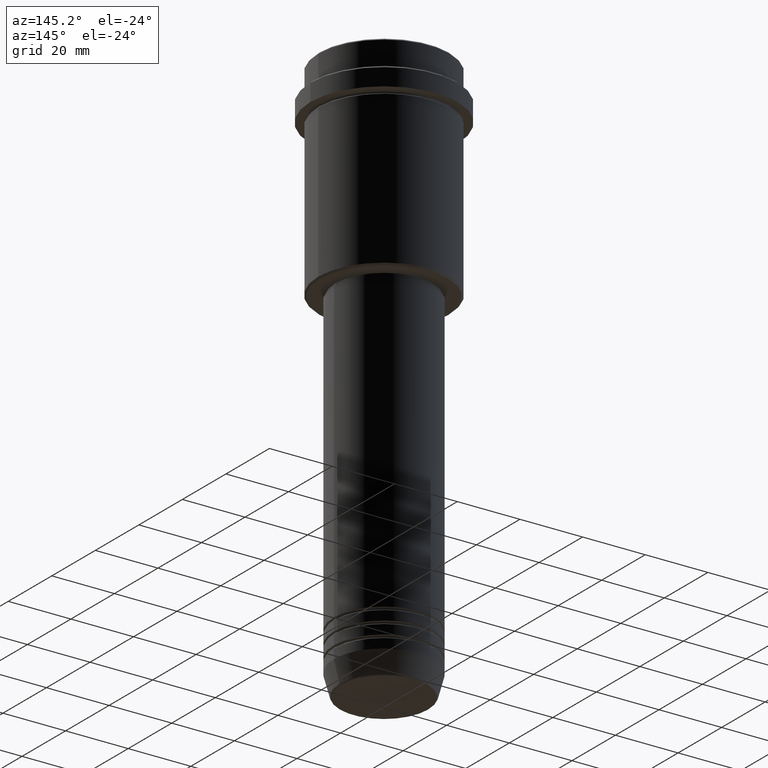
[diagram: clean part render]
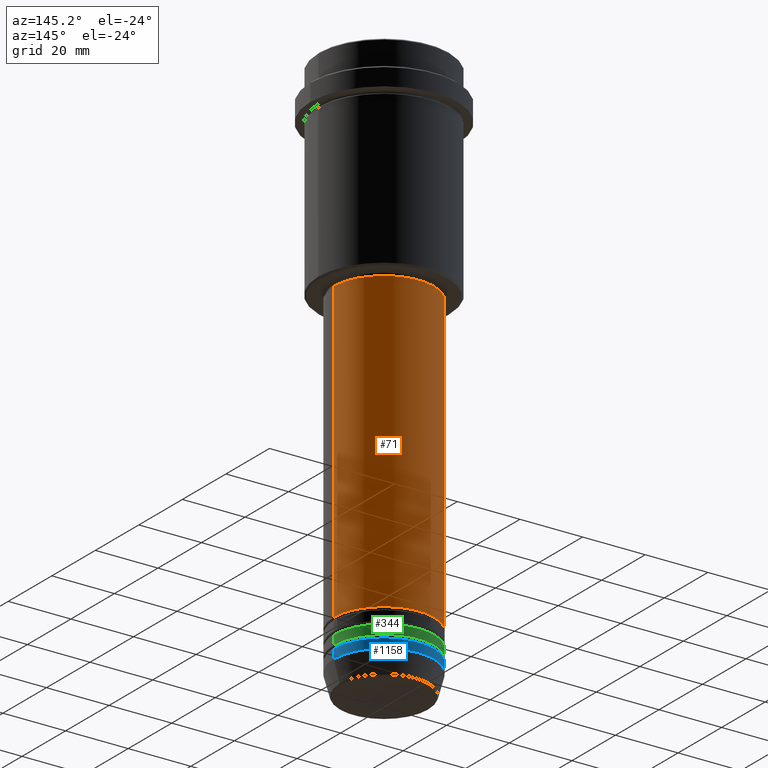
[diagram: same view with three faces highlighted in distinct colors, each labeled with its STEP entity id]
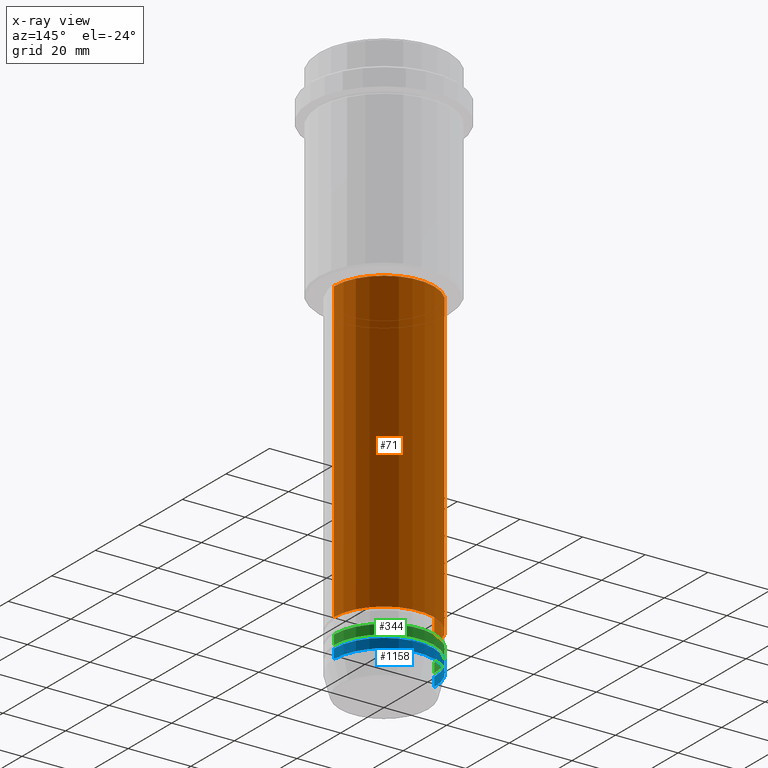
[diagram: x-ray of the same camera — body ghosted, the three highlighted faces saturated]
A machine part, auxiliary view with three faces highlighted in distinct colors.
The next image is the same camera in x-ray (body ghosted, the three faces saturated) — at least one of them is partly hidden behind the body in this view.
Their STEP definitions:

[orange] entity #71 — the highlighted cylindrical surface (partial cylindrical patch) has radius 16 mm, axis along (-0, -0, 1).
#11 = ORIENTED_EDGE ( 'NONE', *, *, #1259, .T. ) ;
#33 = LINE ( 'NONE', #1215, #437 ) ;
#56 = VERTEX_POINT ( 'NONE', #1403 ) ;
#63 = CIRCLE ( 'NONE', #760, 16.00000000000000000 ) ;
#71 = ADVANCED_FACE ( 'NONE', ( #847 ), #1279, .T. ) ;
#159 = CARTESIAN_POINT ( 'NONE',  ( 0.000000000000000000, 0.000000000000000000, -160.9999999999999147 ) ) ;
#241 = VERTEX_POINT ( 'NONE', #1318 ) ;
#319 = CARTESIAN_POINT ( 'NONE',  ( 16.00000000000000000, 0.000000000000000000, -160.9999999999999147 ) ) ;
#331 = DIRECTION ( 'NONE',  ( -0.000000000000000000, -0.000000000000000000, 1.000000000000000000 ) ) ;
#391 = CARTESIAN_POINT ( 'NONE',  ( -16.00000000000000000, 1.959434878635765131E-15, 0.000000000000000000 ) ) ;
#427 = DIRECTION ( 'NONE',  ( 1.000000000000000000, 0.000000000000000000, 0.000000000000000000 ) ) ;
#437 = VECTOR ( 'NONE', #545, 1000.000000000000000 ) ;
#446 = EDGE_CURVE ( 'NONE', #514, #56, #63, .T. ) ;
#464 = ORIENTED_EDGE ( 'NONE', *, *, #1125, .F. ) ;
#514 = VERTEX_POINT ( 'NONE', #319 ) ;
#545 = DIRECTION ( 'NONE',  ( -0.000000000000000000, -0.000000000000000000, 1.000000000000000000 ) ) ;
#657 = DIRECTION ( 'NONE',  ( -0.000000000000000000, -0.000000000000000000, 1.000000000000000000 ) ) ;
#728 = ORIENTED_EDGE ( 'NONE', *, *, #446, .T. ) ;
#760 = AXIS2_PLACEMENT_3D ( 'NONE', #159, #657, #427 ) ;
#847 = FACE_OUTER_BOUND ( 'NONE', #887, .T. ) ;
#887 = EDGE_LOOP ( 'NONE', ( #728, #11, #1152, #464 ) ) ;
#936 = DIRECTION ( 'NONE',  ( -0.000000000000000000, -0.000000000000000000, 1.000000000000000000 ) ) ;
#943 = CIRCLE ( 'NONE', #1074, 16.00000000000000355 ) ;
#967 = CARTESIAN_POINT ( 'NONE',  ( -16.00000000000000355, 1.959434878635765526E-15, -66.00000000000000000 ) ) ;
#996 = CARTESIAN_POINT ( 'NONE',  ( 0.000000000000000000, 0.000000000000000000, -66.00000000000000000 ) ) ;
#1005 = VERTEX_POINT ( 'NONE', #967 ) ;
#1038 = LINE ( 'NONE', #391, #1213 ) ;
#1074 = AXIS2_PLACEMENT_3D ( 'NONE', #996, #331, #1302 ) ;
#1125 = EDGE_CURVE ( 'NONE', #514, #241, #33, .T. ) ;
#1149 = EDGE_CURVE ( 'NONE', #241, #1005, #943, .T. ) ;
#1152 = ORIENTED_EDGE ( 'NONE', *, *, #1149, .F. ) ;
#1186 = DIRECTION ( 'NONE',  ( -0.000000000000000000, -0.000000000000000000, 1.000000000000000000 ) ) ;
#1213 = VECTOR ( 'NONE', #936, 1000.000000000000000 ) ;
#1215 = CARTESIAN_POINT ( 'NONE',  ( 16.00000000000000000, 0.000000000000000000, 0.000000000000000000 ) ) ;
#1259 = EDGE_CURVE ( 'NONE', #56, #1005, #1038, .T. ) ;
#1265 = AXIS2_PLACEMENT_3D ( 'NONE', #1392, #1186, #1274 ) ;
#1274 = DIRECTION ( 'NONE',  ( 1.000000000000000000, 0.000000000000000000, 0.000000000000000000 ) ) ;
#1279 = CYLINDRICAL_SURFACE ( 'NONE', #1265, 16.00000000000000000 ) ;
#1302 = DIRECTION ( 'NONE',  ( 1.000000000000000000, 0.000000000000000000, 0.000000000000000000 ) ) ;
#1318 = CARTESIAN_POINT ( 'NONE',  ( 16.00000000000000355, 0.000000000000000000, -66.00000000000000000 ) ) ;
#1392 = CARTESIAN_POINT ( 'NONE',  ( 0.000000000000000000, 0.000000000000000000, 0.000000000000000000 ) ) ;
#1403 = CARTESIAN_POINT ( 'NONE',  ( -16.00000000000000000, 1.959434878635765131E-15, -160.9999999999999147 ) ) ;

[blue] entity #1158 — the highlighted cylindrical surface (partial cylindrical patch) has radius 16 mm, axis along (-0, -0, 1).
#46 = CARTESIAN_POINT ( 'NONE',  ( -16.00000000000000000, 1.959434878635765131E-15, 0.000000000000000000 ) ) ;
#48 = ORIENTED_EDGE ( 'NONE', *, *, #955, .T. ) ;
#61 = EDGE_LOOP ( 'NONE', ( #48, #266, #632, #1085 ) ) ;
#94 = DIRECTION ( 'NONE',  ( -0.000000000000000000, -0.000000000000000000, 1.000000000000000000 ) ) ;
#137 = DIRECTION ( 'NONE',  ( -0.000000000000000000, -0.000000000000000000, 1.000000000000000000 ) ) ;
#163 = LINE ( 'NONE', #46, #225 ) ;
#194 = EDGE_CURVE ( 'NONE', #1353, #465, #301, .T. ) ;
#214 = DIRECTION ( 'NONE',  ( 1.000000000000000000, 0.000000000000000000, 0.000000000000000000 ) ) ;
#225 = VECTOR ( 'NONE', #606, 1000.000000000000000 ) ;
#266 = ORIENTED_EDGE ( 'NONE', *, *, #1246, .T. ) ;
#288 = VECTOR ( 'NONE', #94, 1000.000000000000000 ) ;
#300 = CARTESIAN_POINT ( 'NONE',  ( 16.00000000000000000, 0.000000000000000000, -170.0000000000000000 ) ) ;
#301 = LINE ( 'NONE', #749, #288 ) ;
#356 = EDGE_CURVE ( 'NONE', #465, #598, #382, .T. ) ;
#382 = CIRCLE ( 'NONE', #1267, 16.00000000000000000 ) ;
#465 = VERTEX_POINT ( 'NONE', #300 ) ;
#493 = CARTESIAN_POINT ( 'NONE',  ( -16.00000000000000000, 1.959434878635765131E-15, -173.0000000000000284 ) ) ;
#519 = AXIS2_PLACEMENT_3D ( 'NONE', #1191, #952, #1378 ) ;
#598 = VERTEX_POINT ( 'NONE', #666 ) ;
#606 = DIRECTION ( 'NONE',  ( -0.000000000000000000, -0.000000000000000000, 1.000000000000000000 ) ) ;
#616 = DIRECTION ( 'NONE',  ( 1.000000000000000000, 0.000000000000000000, 0.000000000000000000 ) ) ;
#632 = ORIENTED_EDGE ( 'NONE', *, *, #356, .F. ) ;
#647 = AXIS2_PLACEMENT_3D ( 'NONE', #693, #137, #214 ) ;
#666 = CARTESIAN_POINT ( 'NONE',  ( -16.00000000000000000, 1.959434878635765131E-15, -170.0000000000000000 ) ) ;
#693 = CARTESIAN_POINT ( 'NONE',  ( 0.000000000000000000, 0.000000000000000000, 0.000000000000000000 ) ) ;
#749 = CARTESIAN_POINT ( 'NONE',  ( 16.00000000000000000, 0.000000000000000000, 0.000000000000000000 ) ) ;
#792 = DIRECTION ( 'NONE',  ( -0.000000000000000000, -0.000000000000000000, 1.000000000000000000 ) ) ;
#952 = DIRECTION ( 'NONE',  ( -0.000000000000000000, -0.000000000000000000, 1.000000000000000000 ) ) ;
#955 = EDGE_CURVE ( 'NONE', #1353, #1216, #1139, .T. ) ;
#1085 = ORIENTED_EDGE ( 'NONE', *, *, #194, .F. ) ;
#1107 = CYLINDRICAL_SURFACE ( 'NONE', #647, 16.00000000000000000 ) ;
#1139 = CIRCLE ( 'NONE', #519, 16.00000000000000000 ) ;
#1158 = ADVANCED_FACE ( 'NONE', ( #1328 ), #1107, .T. ) ;
#1191 = CARTESIAN_POINT ( 'NONE',  ( 0.000000000000000000, 0.000000000000000000, -173.0000000000000284 ) ) ;
#1216 = VERTEX_POINT ( 'NONE', #493 ) ;
#1223 = CARTESIAN_POINT ( 'NONE',  ( 0.000000000000000000, 0.000000000000000000, -170.0000000000000000 ) ) ;
#1246 = EDGE_CURVE ( 'NONE', #1216, #598, #163, .T. ) ;
#1267 = AXIS2_PLACEMENT_3D ( 'NONE', #1223, #792, #616 ) ;
#1281 = CARTESIAN_POINT ( 'NONE',  ( 16.00000000000000000, 0.000000000000000000, -173.0000000000000284 ) ) ;
#1328 = FACE_OUTER_BOUND ( 'NONE', #61, .T. ) ;
#1353 = VERTEX_POINT ( 'NONE', #1281 ) ;
#1378 = DIRECTION ( 'NONE',  ( 1.000000000000000000, 0.000000000000000000, 0.000000000000000000 ) ) ;

[green] entity #344 — the highlighted cylindrical surface (partial cylindrical patch) has radius 16 mm, axis along (-0, -0, 1).
#18 = VERTEX_POINT ( 'NONE', #1375 ) ;
#100 = CARTESIAN_POINT ( 'NONE',  ( 0.000000000000000000, 0.000000000000000000, -168.9999999999999147 ) ) ;
#125 = DIRECTION ( 'NONE',  ( 1.000000000000000000, 0.000000000000000000, 0.000000000000000000 ) ) ;
#168 = EDGE_CURVE ( 'NONE', #1256, #628, #245, .T. ) ;
#198 = CIRCLE ( 'NONE', #223, 16.00000000000000000 ) ;
#223 = AXIS2_PLACEMENT_3D ( 'NONE', #788, #1316, #224 ) ;
#224 = DIRECTION ( 'NONE',  ( 1.000000000000000000, 0.000000000000000000, 0.000000000000000000 ) ) ;
#245 = CIRCLE ( 'NONE', #799, 16.00000000000000000 ) ;
#304 = ORIENTED_EDGE ( 'NONE', *, *, #690, .T. ) ;
#344 = ADVANCED_FACE ( 'NONE', ( #683 ), #905, .T. ) ;
#349 = DIRECTION ( 'NONE',  ( -0.000000000000000000, -0.000000000000000000, 1.000000000000000000 ) ) ;
#417 = VERTEX_POINT ( 'NONE', #810 ) ;
#537 = DIRECTION ( 'NONE',  ( 1.000000000000000000, 0.000000000000000000, 0.000000000000000000 ) ) ;
#557 = CARTESIAN_POINT ( 'NONE',  ( 0.000000000000000000, 0.000000000000000000, 0.000000000000000000 ) ) ;
#573 = LINE ( 'NONE', #1310, #1011 ) ;
#611 = LINE ( 'NONE', #808, #782 ) ;
#628 = VERTEX_POINT ( 'NONE', #688 ) ;
#641 = AXIS2_PLACEMENT_3D ( 'NONE', #557, #1111, #125 ) ;
#648 = EDGE_CURVE ( 'NONE', #18, #417, #198, .T. ) ;
#683 = FACE_OUTER_BOUND ( 'NONE', #874, .T. ) ;
#688 = CARTESIAN_POINT ( 'NONE',  ( -16.00000000000000000, 1.959434878635765131E-15, -168.9999999999999147 ) ) ;
#690 = EDGE_CURVE ( 'NONE', #628, #417, #573, .T. ) ;
#782 = VECTOR ( 'NONE', #910, 1000.000000000000000 ) ;
#788 = CARTESIAN_POINT ( 'NONE',  ( 0.000000000000000000, 0.000000000000000000, -165.9999999999999147 ) ) ;
#799 = AXIS2_PLACEMENT_3D ( 'NONE', #100, #861, #537 ) ;
#808 = CARTESIAN_POINT ( 'NONE',  ( 16.00000000000000000, 0.000000000000000000, 0.000000000000000000 ) ) ;
#810 = CARTESIAN_POINT ( 'NONE',  ( -16.00000000000000000, 1.959434878635765131E-15, -165.9999999999999147 ) ) ;
#861 = DIRECTION ( 'NONE',  ( -0.000000000000000000, -0.000000000000000000, 1.000000000000000000 ) ) ;
#874 = EDGE_LOOP ( 'NONE', ( #1414, #304, #997, #1113 ) ) ;
#905 = CYLINDRICAL_SURFACE ( 'NONE', #641, 16.00000000000000000 ) ;
#910 = DIRECTION ( 'NONE',  ( -0.000000000000000000, -0.000000000000000000, 1.000000000000000000 ) ) ;
#997 = ORIENTED_EDGE ( 'NONE', *, *, #648, .F. ) ;
#1011 = VECTOR ( 'NONE', #349, 1000.000000000000000 ) ;
#1111 = DIRECTION ( 'NONE',  ( -0.000000000000000000, -0.000000000000000000, 1.000000000000000000 ) ) ;
#1113 = ORIENTED_EDGE ( 'NONE', *, *, #1286, .F. ) ;
#1254 = CARTESIAN_POINT ( 'NONE',  ( 16.00000000000000000, 0.000000000000000000, -168.9999999999999147 ) ) ;
#1256 = VERTEX_POINT ( 'NONE', #1254 ) ;
#1286 = EDGE_CURVE ( 'NONE', #1256, #18, #611, .T. ) ;
#1310 = CARTESIAN_POINT ( 'NONE',  ( -16.00000000000000000, 1.959434878635765131E-15, 0.000000000000000000 ) ) ;
#1316 = DIRECTION ( 'NONE',  ( -0.000000000000000000, -0.000000000000000000, 1.000000000000000000 ) ) ;
#1375 = CARTESIAN_POINT ( 'NONE',  ( 16.00000000000000000, 0.000000000000000000, -165.9999999999999147 ) ) ;
#1414 = ORIENTED_EDGE ( 'NONE', *, *, #168, .T. ) ;